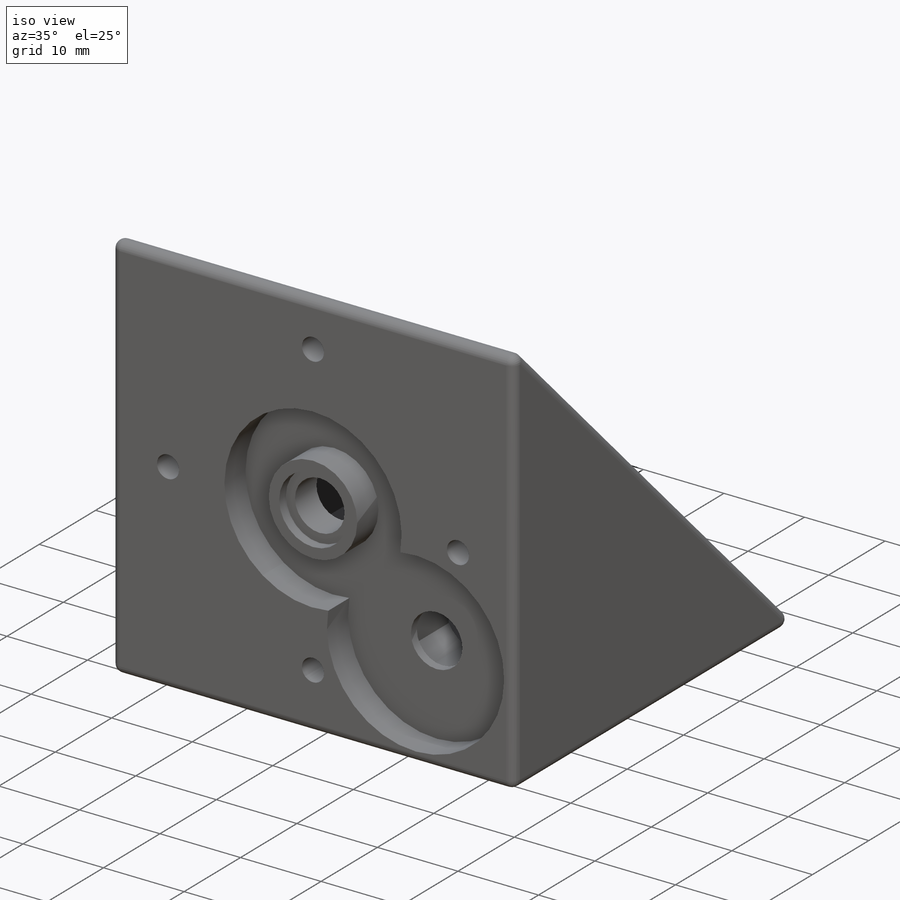
[diagram: iso view]
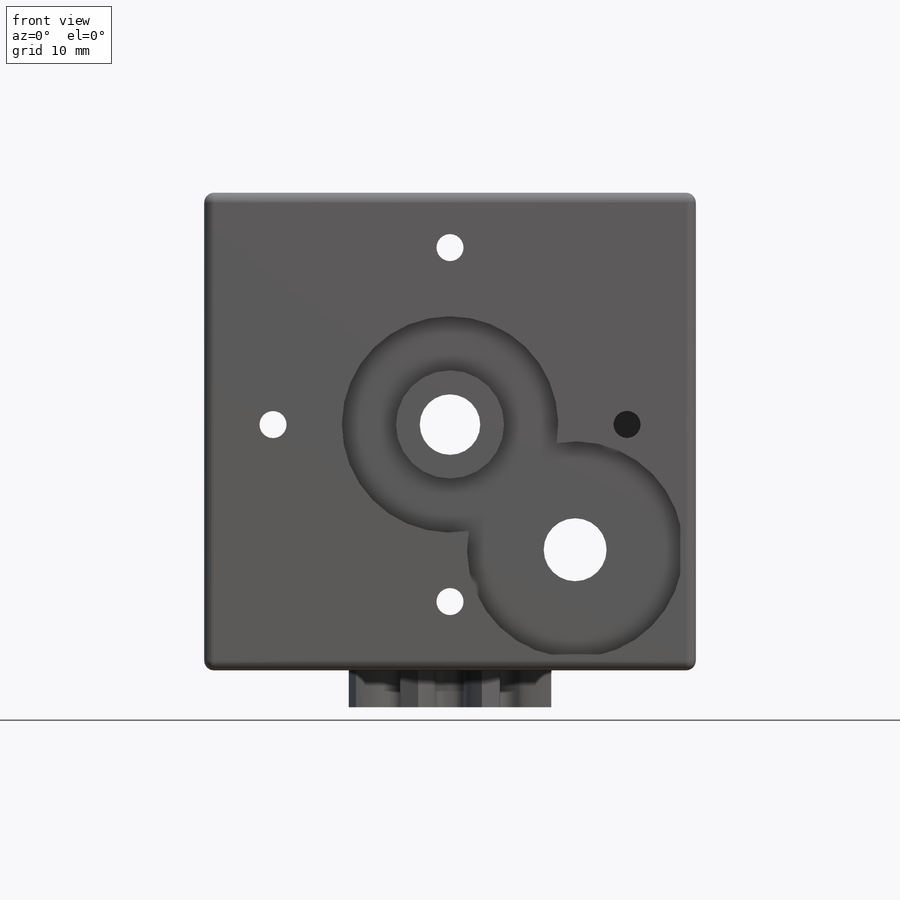
[diagram: front view]
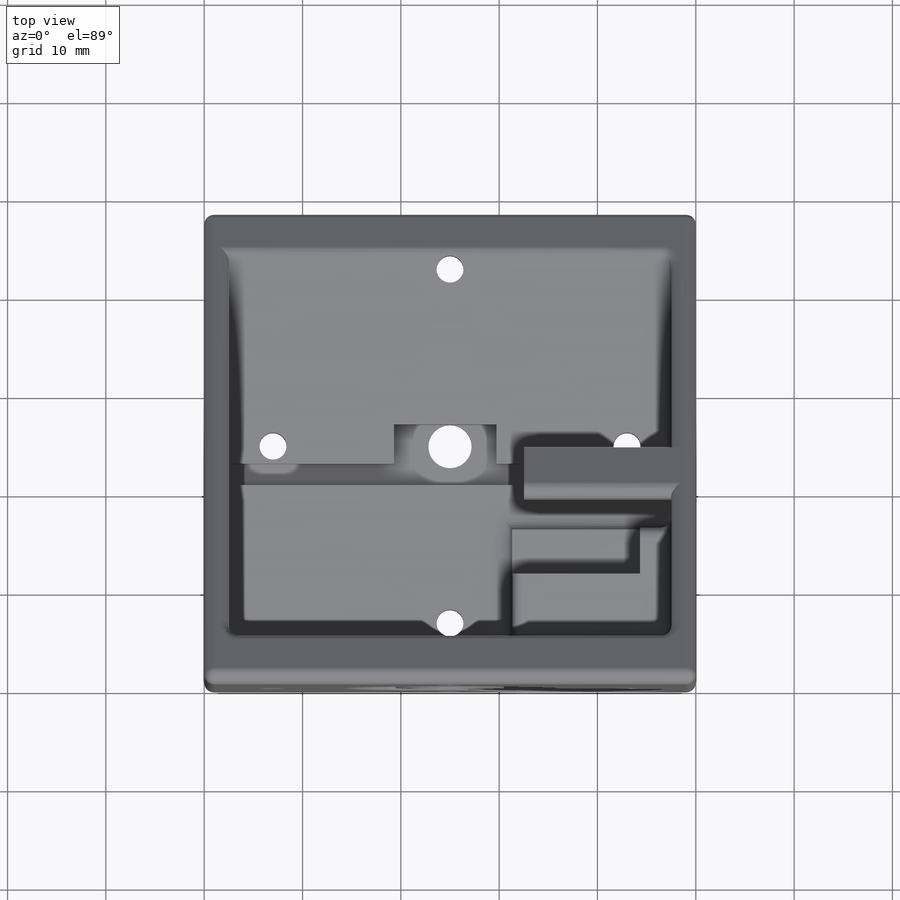
[diagram: top view]
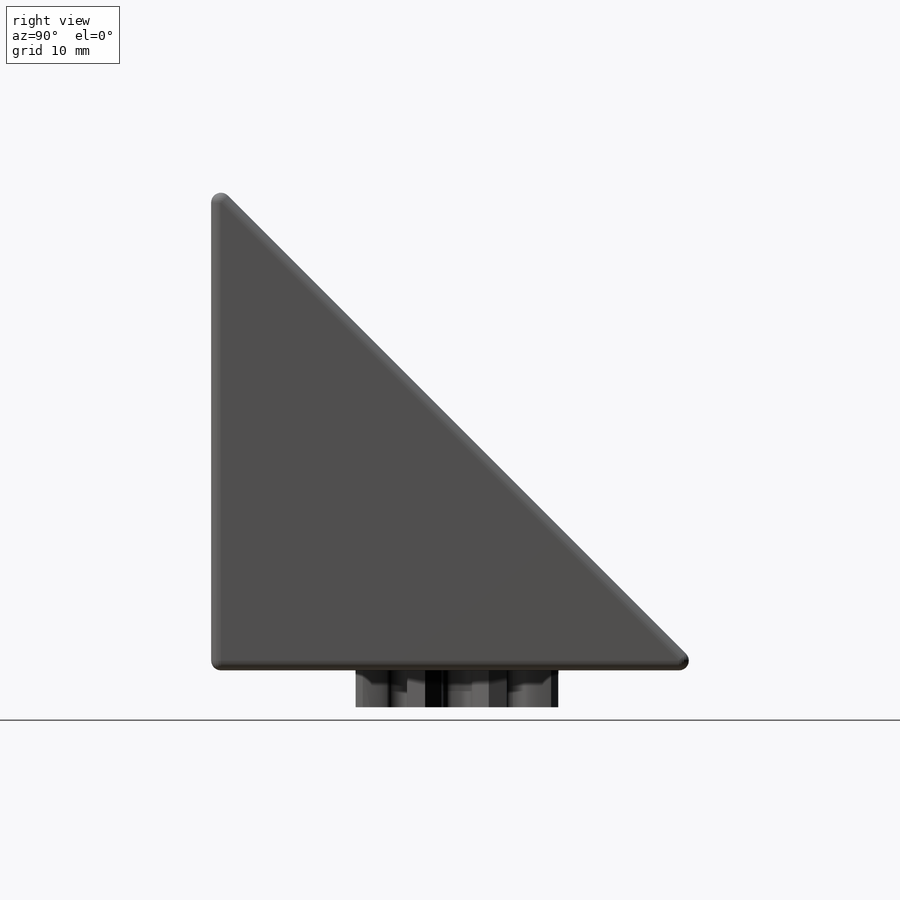
[diagram: right view]
SOLIDWORKS PART (.sldprt)
format: sldprt  version: not decoded by parser v0  size: 1,428,992 bytes
history: native  units: mm
features: sketch x26, extrude x13, move_body x10, cut_extrude x4, material x1, surface_op x1, fillet x1 + 13 further entries (+39 scaffold rows collapsed; 25 parser-record rows omitted)
feature tree (133):
  scaffold x39  (default folders/planes/origin — collapsed)
  material  "Material <not specified>"
  parser-record x25  (decoder bookkeeping rows leaked as tree rows — omitted from the tree; the rows remain in map.json)
  sketch  "Sketch1"  dims[D1=50.0mm D2=50.0mm]
  extrude  "Boss-Extrude1"  Depth=50mm
  sketch  "front face reference circle"  dims[c1.D1=~17.457622mm c1.D2=~17.457622mm c1.D3=50.0mm c2.D1=25.0mm c2.D2=25.0mm]
  sketch  "bottom face reference circle"  dims[c1.D1=50.0mm c1.D2=50.0mm c1.D3=50.0mm c2.D2=25.0mm c2.D3=25.0mm]
  sketch  "Sketch3"  dims[D1=5.0mm D2=5.0mm D3=45.0mm D4=45.0mm]
  cut_extrude  "Cut-Extrude2"  Depth=45mm
  sketch  "Sketch2"  dims[c1.D1=~19.205794mm c1.D2=~19.205794mm c1.D3=22.0mm c1.D4=~11.860009mm c1.D5=~11.860009mm c1.D6=11.0mm c1.D8=12.0mm c1.D9=6.0mm c2.D8=11.0mm c2.D1=25.0mm c2.D2=25.0mm c2.D4=25.0mm c2.D5=25.0mm c2.D7=18.0mm]
  cut_extrude  "gears indents"  Depth=3.75mm
  "minijack_male_naked"
  move_body  "Body-Move/Copy2"
  sketch  "Sketch46"  dims[D1=0.0mm]
  extrude  "minijack bounding cylinder"  Depth=0.2mm
  sketch  "rotaryEncoder.EVE-KE2F2024B"
  extrude  "Surface Bodies3"  [1 undecoded]
  "Axes3"
  "Planes3"
  move_body  "Body-Move/Copy4"
  move_body  "Concentric7"
  sketch  "Sketch53"
  extrude  "encoder shaft bounding cylinder"  [1 undecoded]
  sketch  "Sketch41"  dims[D1=0.0mm]
  extrude  "encoder housing"  [1 undecoded]
  "encoder bounding offset"
  sketch  "minijack_female"
  extrude  "Surface Bodies4"  [1 undecoded]
  "Axes4"
  "Planes4"
  move_body  "Body-Move/Copy40"
  move_body  "Concentric16"
  sketch  "Sketch1-zmeika_pcb_01"  dims[D1=35.3mm D2=26.5mm D3=3.0mm D4=15.0mm]
  sketch  "zmeika_pcb_01"
  extrude  "Surface Bodies11"  [1 undecoded]
  "Axes11"
  "Planes11"
  move_body  "Body-Move/Copy42"
  sketch  "Sketch48"  dims[D1=45.0mm]
  extrude  "pcb bounding box"  [1 undecoded]
  sketch  "SketchRevolveSpurGear-SpurGear_08_8t_18mm"  dims[Side1=1.875mm OutsideRadius=10.8mm Side2=1.875mm]
  sketch  "SketchToothSpurGear-SpurGear_08_8t_18mm"
  sketch  "BoreRevolveSketch-SpurGear_08_8t_18mm"  dims[BoreSide1=1.875mm TaperSide1=6.0mm BoreSide2=1.875mm TaperSide2=6.0mm]
  sketch  "Sketch52"  dims[D1=10.0mm D2=2.0mm]
  extrude  "pcb hook"  Depth=15mm
  "pcb offset box"
  sketch  "Sketch50"
  extrude  "Boss-Extrude7"  [1 undecoded]
  sketch  "Sketch51"
  extrude  "Boss-Extrude8"  [1 undecoded]
  surface_op  "Surface-Offset2"
  sketch  "SpurGear_08_8t_18mm"
  extrude  "Surface Bodies18"  [1 undecoded]
  "Axes18"
  "Planes18"
  move_body  "Body-Move/Copy34"
  move_body  "Concentric13"
  sketch  "SketchRevolveSpurGear-SpurGear_08_8t_18mm3"  dims[Side1=1.875mm OutsideRadius=10.8mm Side2=1.875mm]
  sketch  "SketchToothSpurGear-SpurGear_08_8t_18mm3"
  sketch  "BoreRevolveSketch-SpurGear_08_8t_18mm3"  dims[BoreSide1=1.875mm TaperSide1=6.0mm BoreSide2=1.875mm TaperSide2=6.0mm]
  sketch  "SpurGear_08_8t_18mm3"
  extrude  "Surface Bodies20"  [1 undecoded]
  "Axes20"
  "Planes20"
  move_body  "Body-Move/Copy38"
  move_body  "Concentric15"
  sketch  "Sketch58"  dims[c1.D1=2.75mm c1.D3=2.75mm c1.D4=2.75mm c1.D5=2.75mm c2.D1=2.75mm c2.D2=18.0mm c2.D6=18.0mm c2.D7=18.0mm c2.D8=18.0mm c3.D2=12.5mm c3.D4=4.0]
  cut_extrude  "front magnet indents"  Depth=6mm
  sketch  "Sketch59"  dims[c1.D1=2.75mm c1.D2=2.75mm c1.D3=2.75mm c1.D4=2.75mm c2.D1=2.75mm c2.D5=18.0mm c2.D6=18.0mm c2.D7=18.0mm c2.D8=18.0mm c2.D3=12.5mm c2.D4=4.0]
  cut_extrude  "bottom magnet indents"  Depth=6mm
  fillet  "Fillet4"  Radius=1mm
decode coverage: 24 of 55 modeling features carry decoded parameters; 13 rows unclassified (native names shown)
note: ~ marks probable driven/reference dimensions
note: 10 parameter values undecoded
summary: no parameter record found for 10 features
note: suppression state not decoded; provenance and decode notes live in map.json
